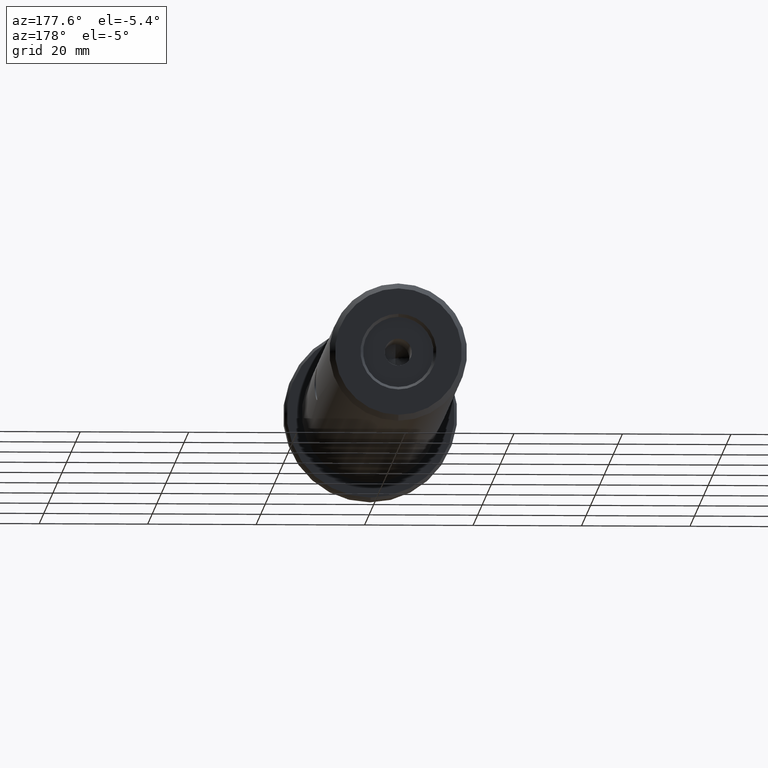
[diagram: clean part render]
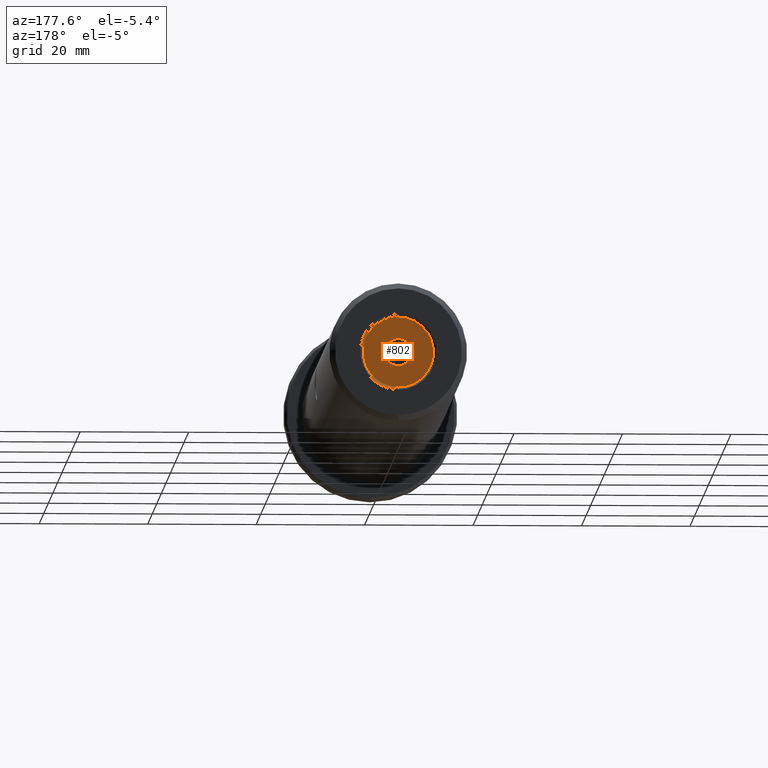
[diagram: same view with one face highlighted and labeled with its STEP entity id]
A machine part, auxiliary view. The second image highlights one B-rep face of the part: STEP entity #802.
In plain terms, the highlighted planar face has unit normal (0, 1, 0).
Its self-contained STEP definition (entity closure, byte-faithful):
#16 = VERTEX_POINT ( 'NONE', #59 ) ;
#31 = AXIS2_PLACEMENT_3D ( 'NONE', #940, #882, #261 ) ;
#44 = DIRECTION ( 'NONE',  ( 0.0000000000000000000, 0.0000000000000000000, 1.000000000000000000 ) ) ;
#59 = CARTESIAN_POINT ( 'NONE',  ( 7.960204194457796500E-016, 87.90000000000000600, -6.500000000000000900 ) ) ;
#60 = DIRECTION ( 'NONE',  ( 0.0000000000000000000, 1.000000000000000000, 0.0000000000000000000 ) ) ;
#76 = AXIS2_PLACEMENT_3D ( 'NONE', #858, #610, #44 ) ;
#158 = EDGE_LOOP ( 'NONE', ( #304, #189 ) ) ;
#182 = DIRECTION ( 'NONE',  ( 0.0000000000000000000, 1.000000000000000000, 0.0000000000000000000 ) ) ;
#189 = ORIENTED_EDGE ( 'NONE', *, *, #588, .F. ) ;
#228 = EDGE_CURVE ( 'NONE', #953, #704, #375, .T. ) ;
#250 = AXIS2_PLACEMENT_3D ( 'NONE', #410, #924, #323 ) ;
#261 = DIRECTION ( 'NONE',  ( 0.0000000000000000000, 0.0000000000000000000, 1.000000000000000000 ) ) ;
#277 = ORIENTED_EDGE ( 'NONE', *, *, #555, .T. ) ;
#304 = ORIENTED_EDGE ( 'NONE', *, *, #228, .F. ) ;
#312 = CIRCLE ( 'NONE', #825, 6.500000000000000900 ) ;
#323 = DIRECTION ( 'NONE',  ( 0.0000000000000000000, 0.0000000000000000000, 1.000000000000000000 ) ) ;
#370 = CARTESIAN_POINT ( 'NONE',  ( 0.0000000000000000000, 87.90000000000000600, 2.499999999999999600 ) ) ;
#375 = CIRCLE ( 'NONE', #250, 2.499999999999999600 ) ;
#410 = CARTESIAN_POINT ( 'NONE',  ( 0.0000000000000000000, 87.90000000000000600, 0.0000000000000000000 ) ) ;
#415 = CARTESIAN_POINT ( 'NONE',  ( 0.0000000000000000000, 87.90000000000000600, 0.0000000000000000000 ) ) ;
#428 = PLANE ( 'NONE',  #934 ) ;
#473 = FACE_OUTER_BOUND ( 'NONE', #753, .T. ) ;
#516 = DIRECTION ( 'NONE',  ( 0.0000000000000000000, 0.0000000000000000000, 1.000000000000000000 ) ) ;
#525 = CARTESIAN_POINT ( 'NONE',  ( 0.0000000000000000000, 87.90000000000000600, 6.500000000000000900 ) ) ;
#542 = DIRECTION ( 'NONE',  ( 0.0000000000000000000, -0.0000000000000000000, 1.000000000000000000 ) ) ;
#548 = VERTEX_POINT ( 'NONE', #525 ) ;
#555 = EDGE_CURVE ( 'NONE', #548, #16, #312, .T. ) ;
#566 = CARTESIAN_POINT ( 'NONE',  ( 3.061616997868382600E-016, 87.90000000000000600, -2.499999999999999600 ) ) ;
#588 = EDGE_CURVE ( 'NONE', #704, #953, #916, .T. ) ;
#610 = DIRECTION ( 'NONE',  ( 0.0000000000000000000, 1.000000000000000000, 0.0000000000000000000 ) ) ;
#638 = EDGE_CURVE ( 'NONE', #16, #548, #854, .T. ) ;
#682 = CARTESIAN_POINT ( 'NONE',  ( 0.0000000000000000000, 87.90000000000000600, 0.0000000000000000000 ) ) ;
#704 = VERTEX_POINT ( 'NONE', #566 ) ;
#753 = EDGE_LOOP ( 'NONE', ( #277, #978 ) ) ;
#802 = ADVANCED_FACE ( 'NONE', ( #929, #473 ), #428, .T. ) ;
#825 = AXIS2_PLACEMENT_3D ( 'NONE', #682, #182, #516 ) ;
#854 = CIRCLE ( 'NONE', #76, 6.500000000000000900 ) ;
#858 = CARTESIAN_POINT ( 'NONE',  ( 0.0000000000000000000, 87.90000000000000600, 0.0000000000000000000 ) ) ;
#882 = DIRECTION ( 'NONE',  ( -0.0000000000000000000, 1.000000000000000000, -0.0000000000000000000 ) ) ;
#916 = CIRCLE ( 'NONE', #31, 2.499999999999999600 ) ;
#924 = DIRECTION ( 'NONE',  ( -0.0000000000000000000, 1.000000000000000000, -0.0000000000000000000 ) ) ;
#929 = FACE_BOUND ( 'NONE', #158, .T. ) ;
#934 = AXIS2_PLACEMENT_3D ( 'NONE', #415, #60, #542 ) ;
#940 = CARTESIAN_POINT ( 'NONE',  ( 0.0000000000000000000, 87.90000000000000600, 0.0000000000000000000 ) ) ;
#953 = VERTEX_POINT ( 'NONE', #370 ) ;
#978 = ORIENTED_EDGE ( 'NONE', *, *, #638, .T. ) ;